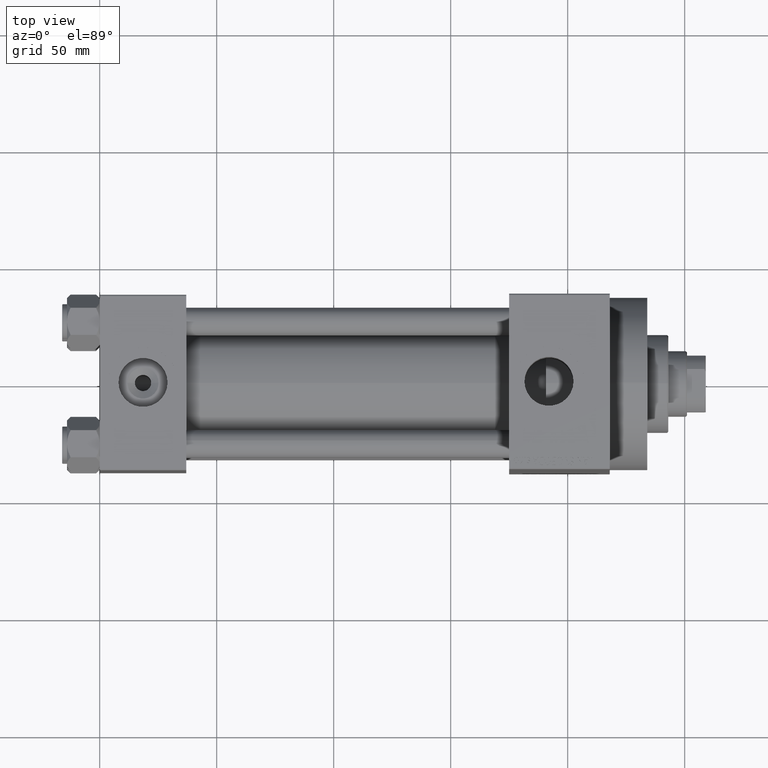
[diagram: clean part render]
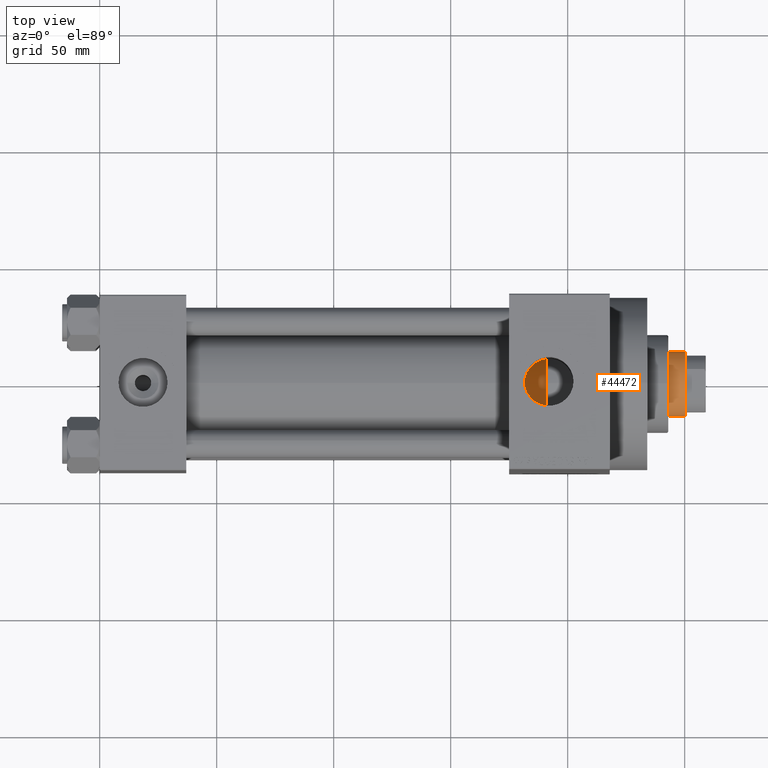
[diagram: same view with one face highlighted and labeled with its STEP entity id]
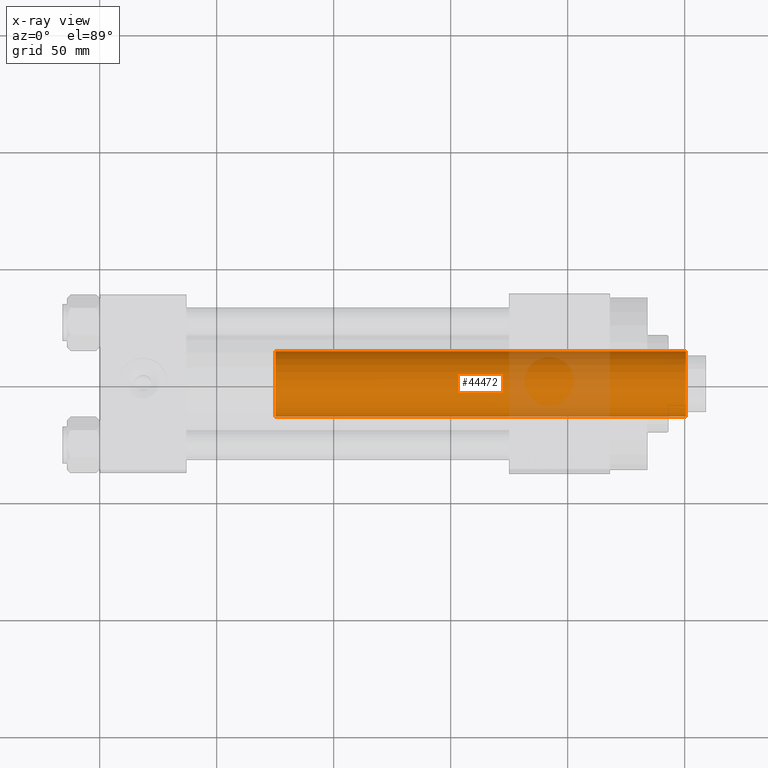
[diagram: x-ray of the same camera — body ghosted, the highlighted face saturated]
A machine part, top view. The second image highlights one B-rep face of the part: STEP entity #44472.
The next image is the same camera in x-ray: the body ghosted, the highlighted face saturated — about 18% of this face is hidden behind the body in this view.
In plain terms, the highlighted cylindrical surface (edge-blend (fillet) strip) has radius 14 mm, axis along (-1, 0, 0).
Its self-contained STEP definition (entity closure, byte-faithful):
#1379 = AXIS2_PLACEMENT_3D ( 'NONE', #16394, #9894, #45628 ) ;
#2690 = VERTEX_POINT ( 'NONE', #40382 ) ;
#2954 = DIRECTION ( 'NONE',  ( -0.000000000000000000, -0.000000000000000000, -1.000000000000000000 ) ) ;
#2974 = ORIENTED_EDGE ( 'NONE', *, *, #19933, .T. ) ;
#3404 = CARTESIAN_POINT ( 'NONE',  ( -14.00000000000000178, 0.000000000000000000, 38.00000000000000000 ) ) ;
#5758 = ORIENTED_EDGE ( 'NONE', *, *, #28903, .T. ) ;
#7823 = EDGE_LOOP ( 'NONE', ( #37726, #5758, #2974, #28609 ) ) ;
#9702 = VERTEX_POINT ( 'NONE', #38405 ) ;
#9894 = DIRECTION ( 'NONE',  ( 0.000000000000000000, 0.000000000000000000, -1.000000000000000000 ) ) ;
#12540 = CARTESIAN_POINT ( 'NONE',  ( -14.00000000000000178, 0.000000000000000000, 214.0000000000000000 ) ) ;
#14144 = CYLINDRICAL_SURFACE ( 'NONE', #24687, 14.00000000000000178 ) ;
#16394 = CARTESIAN_POINT ( 'NONE',  ( 0.000000000000000000, 0.000000000000000000, 213.5000000000000000 ) ) ;
#19933 = EDGE_CURVE ( 'NONE', #2690, #29079, #27149, .T. ) ;
#21850 = VECTOR ( 'NONE', #24265, 1000.000000000000000 ) ;
#23941 = AXIS2_PLACEMENT_3D ( 'NONE', #31232, #45857, #27866 ) ;
#24208 = FACE_OUTER_BOUND ( 'NONE', #7823, .T. ) ;
#24265 = DIRECTION ( 'NONE',  ( -0.000000000000000000, -0.000000000000000000, -1.000000000000000000 ) ) ;
#24687 = AXIS2_PLACEMENT_3D ( 'NONE', #38823, #32099, #46731 ) ;
#27149 = LINE ( 'NONE', #12540, #21850 ) ;
#27866 = DIRECTION ( 'NONE',  ( 1.000000000000000000, 0.000000000000000000, 0.000000000000000000 ) ) ;
#28119 = LINE ( 'NONE', #43458, #31563 ) ;
#28609 = ORIENTED_EDGE ( 'NONE', *, *, #41691, .T. ) ;
#28903 = EDGE_CURVE ( 'NONE', #36203, #2690, #42824, .T. ) ;
#29079 = VERTEX_POINT ( 'NONE', #3404 ) ;
#31232 = CARTESIAN_POINT ( 'NONE',  ( 0.000000000000000000, 0.000000000000000000, 38.00000000000000000 ) ) ;
#31563 = VECTOR ( 'NONE', #2954, 1000.000000000000000 ) ;
#32099 = DIRECTION ( 'NONE',  ( -0.000000000000000000, -0.000000000000000000, -1.000000000000000000 ) ) ;
#36203 = VERTEX_POINT ( 'NONE', #43214 ) ;
#37726 = ORIENTED_EDGE ( 'NONE', *, *, #39676, .F. ) ;
#38405 = CARTESIAN_POINT ( 'NONE',  ( 14.00000000000000178, 1.714505518806294835E-15, 38.00000000000000000 ) ) ;
#38823 = CARTESIAN_POINT ( 'NONE',  ( 0.000000000000000000, 0.000000000000000000, 214.0000000000000000 ) ) ;
#39676 = EDGE_CURVE ( 'NONE', #36203, #9702, #28119, .T. ) ;
#40382 = CARTESIAN_POINT ( 'NONE',  ( -14.00000000000000178, 0.000000000000000000, 213.5000000000000000 ) ) ;
#41691 = EDGE_CURVE ( 'NONE', #29079, #9702, #44597, .T. ) ;
#42824 = CIRCLE ( 'NONE', #1379, 14.00000000000000178 ) ;
#43214 = CARTESIAN_POINT ( 'NONE',  ( 14.00000000000000178, 1.714505518806294835E-15, 213.5000000000000000 ) ) ;
#43458 = CARTESIAN_POINT ( 'NONE',  ( 14.00000000000000178, 1.714505518806294835E-15, 214.0000000000000000 ) ) ;
#44472 = ADVANCED_FACE ( 'NONE', ( #24208 ), #14144, .T. ) ;
#44597 = CIRCLE ( 'NONE', #23941, 14.00000000000000178 ) ;
#45628 = DIRECTION ( 'NONE',  ( 1.000000000000000000, 0.000000000000000000, 0.000000000000000000 ) ) ;
#45857 = DIRECTION ( 'NONE',  ( 0.000000000000000000, 0.000000000000000000, 1.000000000000000000 ) ) ;
#46731 = DIRECTION ( 'NONE',  ( -1.000000000000000000, 0.000000000000000000, 0.000000000000000000 ) ) ;